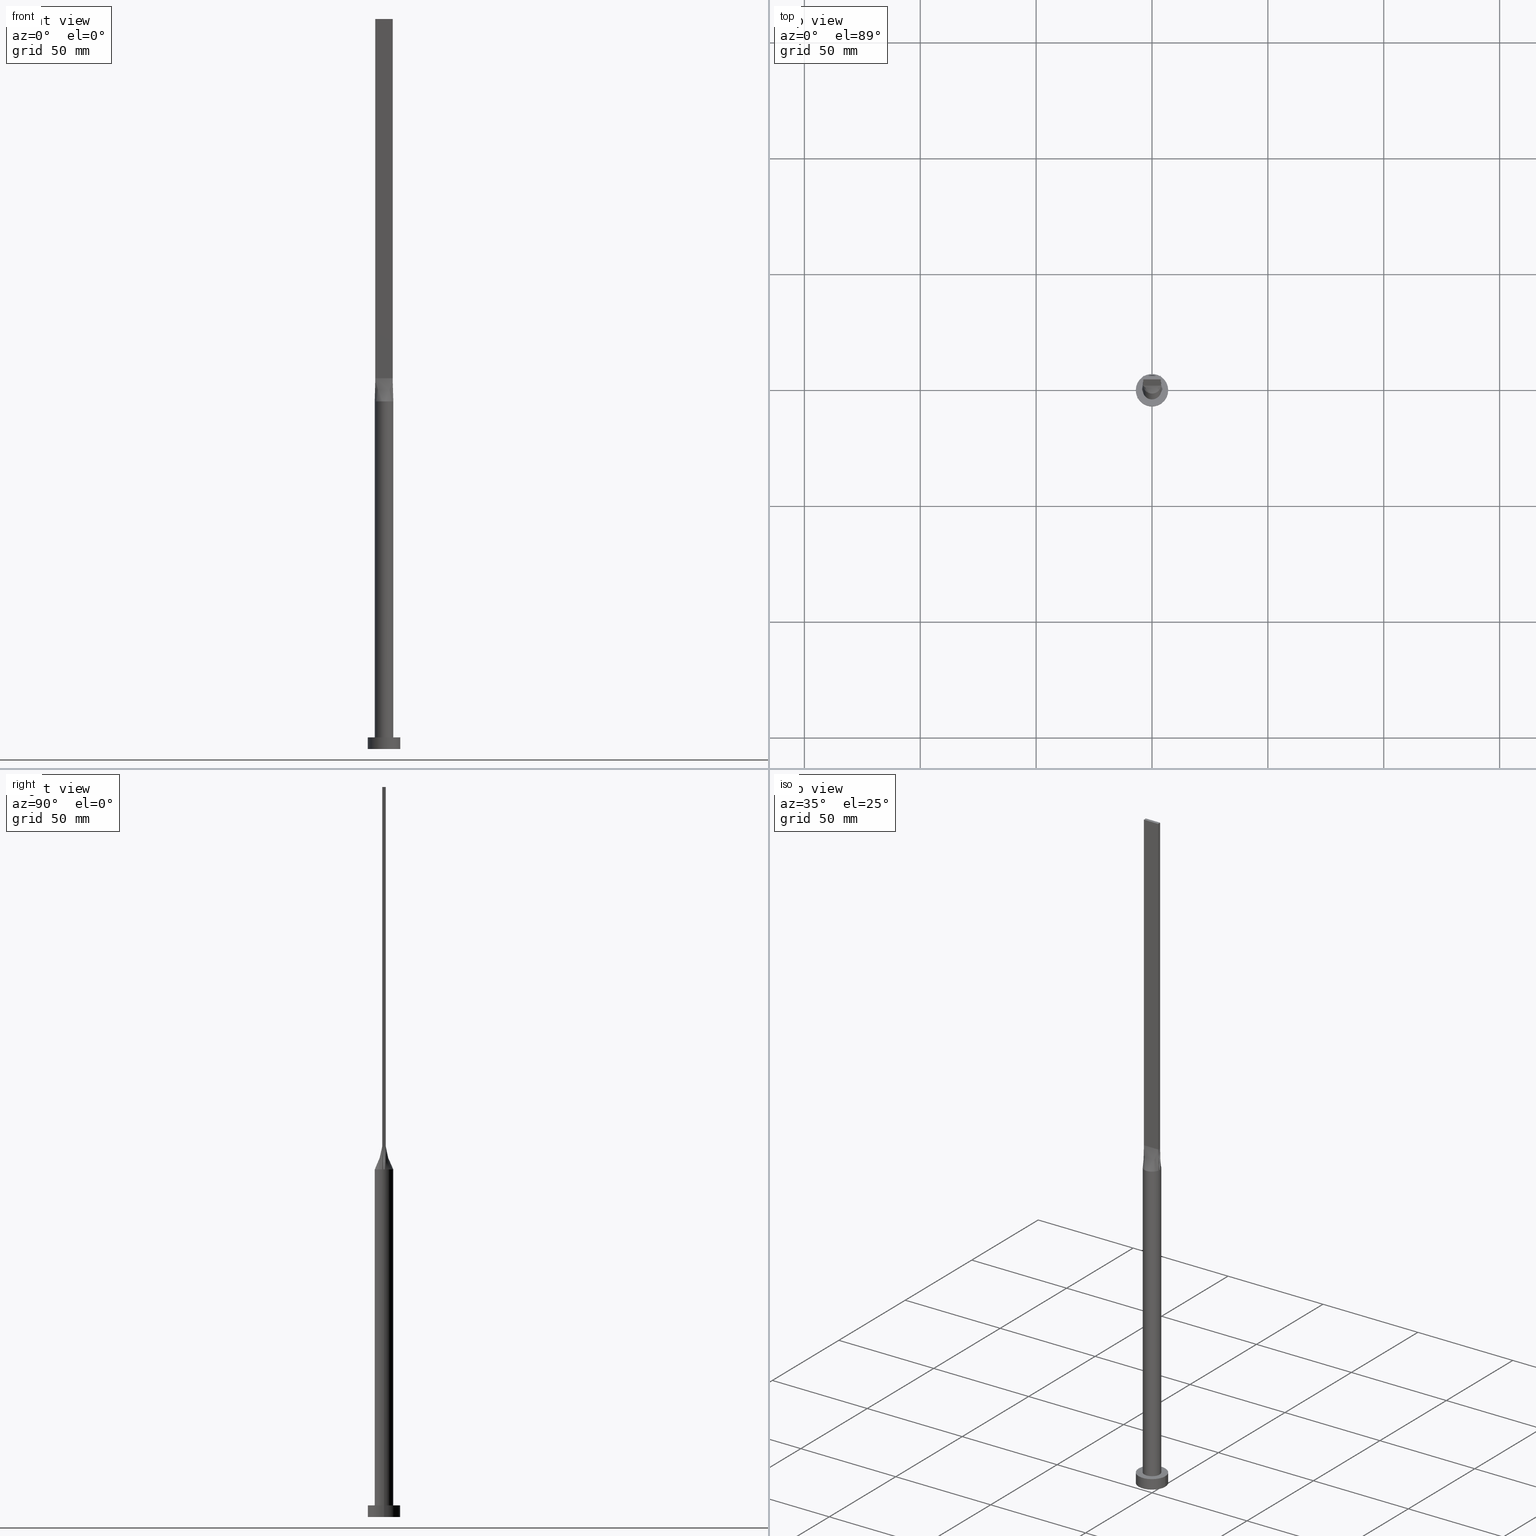
[diagram: canonical four-view strip — front | top / right | iso, engineering-drawing reading convention]
A machine part, canonical four-view strip (front | top / right | iso — engineering-drawing reading convention). The complete STEP part file that produces these views, byte-faithful:
ISO-10303-21;
HEADER;
FILE_DESCRIPTION (( 'STEP AP203' ),
    '1' );
FILE_NAME ('8cc7.STEP',
    '2023-02-13T10:44:38',
    ( '' ),
    ( '' ),
    'SwSTEP 2.0',
    'SolidWorks 2019',
    '' );
FILE_SCHEMA (( 'CONFIG_CONTROL_DESIGN' ));
ENDSEC;

DATA;
#1 = ORIENTED_EDGE ( 'NONE', *, *, #512, .T. ) ;
#2 = CARTESIAN_POINT ( 'NONE',  ( -3.748423346357937280, 1.451418640363469015, 150.0000000000000284 ) ) ;
#3 = CIRCLE ( 'NONE', #426, 7.000000000000000000 ) ;
#4 = B_SPLINE_SURFACE_WITH_KNOTS ( 'NONE', 3, 1, ( 
 ( #68, #67 ),
 ( #70, #251 ),
 ( #208, #27 ),
 ( #253, #560 ),
 ( #19, #344 ),
 ( #166, #431 ) ),
 .UNSPECIFIED., .F., .F., .F.,
 ( 4, 2, 4 ),
 ( 2, 2 ),
 ( 0.000000000000000000, 0.5000000000000000000, 1.000000000000000000 ),
 ( 0.000000000000000000, 1.000000000000000000 ),
 .UNSPECIFIED. ) ;
#5 = ORIENTED_EDGE ( 'NONE', *, *, #521, .F. ) ;
#6 = DIRECTION ( 'NONE',  ( 1.000000000000000000, -1.421085471520200372E-14, 0.000000000000000000 ) ) ;
#7 = EDGE_CURVE ( 'NONE', #326, #169, #202, .T. ) ;
#8 = ORIENTED_EDGE ( 'NONE', *, *, #451, .F. ) ;
#9 = CARTESIAN_POINT ( 'NONE',  ( -3.750000000000000000, 0.7500000000000002220, 160.0000000000000000 ) ) ;
#10 = AXIS2_PLACEMENT_3D ( 'NONE', #572, #318, #88 ) ;
#11 = LINE ( 'NONE', #553, #300 ) ;
#12 = CARTESIAN_POINT ( 'NONE',  ( 3.750000000000000000, -0.7499999999999997780, 315.0000000000000000 ) ) ;
#13 = CARTESIAN_POINT ( 'NONE',  ( 3.999622889843378992, 9.846808768795811108E-16, 150.0000000000000000 ) ) ;
#14 = EDGE_CURVE ( 'NONE', #454, #213, #564, .T. ) ;
#15 =( LENGTH_UNIT ( ) NAMED_UNIT ( * ) SI_UNIT ( .MILLI., .METRE. ) );
#16 = ORIENTED_EDGE ( 'NONE', *, *, #142, .T. ) ;
#17 =( NAMED_UNIT ( * ) SI_UNIT ( $, .STERADIAN. ) SOLID_ANGLE_UNIT ( ) );
#18 = APPROVAL ( #345, 'NEUR�EN�' ) ;
#19 = CARTESIAN_POINT ( 'NONE',  ( 3.973604754045732435, 0.5280542841424789025, 150.0000000000000000 ) ) ;
#20 = EDGE_LOOP ( 'NONE', ( #493, #243 ) ) ;
#21 = AXIS2_PLACEMENT_3D ( 'NONE', #94, #268, #356 ) ;
#22 = MECHANICAL_CONTEXT ( 'NONE', #132, 'mechanical' ) ;
#23 = CARTESIAN_POINT ( 'NONE',  ( -3.750000000000000000, -0.7499999999999993339, 315.0000000000000000 ) ) ;
#24 = APPROVAL_PERSON_ORGANIZATION ( #111, #278, #25 ) ;
#25 = APPROVAL_ROLE ( '' ) ;
#26 = VECTOR ( 'NONE', #499, 1000.000000000000000 ) ;
#27 = CARTESIAN_POINT ( 'NONE',  ( 3.749999999999999556, -0.2499999999999996669, 159.9999999999999716 ) ) ;
#28 = ADVANCED_FACE ( 'NONE', ( #76 ), #102, .T. ) ;
#29 = CALENDAR_DATE ( 2023, 13, 2 ) ;
#30 = MANIFOLD_SOLID_BREP ( 'P�idat vysunut�m5', #123 ) ;
#31 = LINE ( 'NONE', #69, #229 ) ;
#32 = VECTOR ( 'NONE', #280, 1000.000000000000000 ) ;
#33 = FACE_BOUND ( 'NONE', #436, .T. ) ;
#34 = CARTESIAN_POINT ( 'NONE',  ( -3.750000000000000000, 0.7500000000000002220, 315.0000000000000000 ) ) ;
#35 = ORIENTED_EDGE ( 'NONE', *, *, #555, .F. ) ;
#36 = EDGE_CURVE ( 'NONE', #219, #98, #453, .T. ) ;
#37 = CARTESIAN_POINT ( 'NONE',  ( 3.124999999999999112, -0.7499999999999997780, 159.9999999999999716 ) ) ;
#38 = ORIENTED_EDGE ( 'NONE', *, *, #177, .T. ) ;
#39 = CARTESIAN_POINT ( 'NONE',  ( 3.390424152328988416, -2.159240079384420419, 150.0000000000000000 ) ) ;
#40 = CARTESIAN_POINT ( 'NONE',  ( 2.187499999999999112, 0.7500000000000002220, 159.9999999999999716 ) ) ;
#41 = CARTESIAN_POINT ( 'NONE',  ( 3.390424152328985752, 2.159240079384420419, 150.0000000000000568 ) ) ;
#42 = VECTOR ( 'NONE', #424, 1000.000000000000000 ) ;
#43 = ADVANCED_FACE ( 'NONE', ( #359 ), #579, .F. ) ;
#44 = SHAPE_DEFINITION_REPRESENTATION ( #466, #334 ) ;
#45 = CARTESIAN_POINT ( 'NONE',  ( 3.140797583654741931, 2.520780954342106028, 150.0000000000000284 ) ) ;
#46 = CARTESIAN_POINT ( 'NONE',  ( -3.750000000000000000, 0.7500000000000002220, 315.0000000000000000 ) ) ;
#47 = DIRECTION ( 'NONE',  ( 1.000000000000000000, 0.000000000000000000, -0.000000000000000000 ) ) ;
#48 = PRODUCT_DEFINITION ( 'NEZN�M�', '', #567, #270 ) ;
#49 = DIRECTION ( 'NONE',  ( 0.000000000000000000, 0.000000000000000000, 1.000000000000000000 ) ) ;
#50 = LINE ( 'NONE', #240, #575 ) ;
#51 = EDGE_LOOP ( 'NONE', ( #129, #279, #459, #238 ) ) ;
#52 = DIRECTION ( 'NONE',  ( 0.000000000000000000, 0.000000000000000000, 1.000000000000000000 ) ) ;
#53 = DIRECTION ( 'NONE',  ( 1.000000000000000000, 0.000000000000000000, 0.000000000000000000 ) ) ;
#54 = ADVANCED_FACE ( 'NONE', ( #149 ), #234, .F. ) ;
#55 = CARTESIAN_POINT ( 'NONE',  ( -3.749999999999999556, -0.2499999999999998890, 159.9999999999999716 ) ) ;
#56 = VERTEX_POINT ( 'NONE', #488 ) ;
#57 = CARTESIAN_POINT ( 'NONE',  ( 3.750000000000000000, 0.7500000000000002220, 315.0000000000000000 ) ) ;
#58 = CARTESIAN_POINT ( 'NONE',  ( -3.749999999999999556, -0.4999999999999996669, 159.9999999999999716 ) ) ;
#59 = ORIENTED_EDGE ( 'NONE', *, *, #391, .T. ) ;
#60 = CARTESIAN_POINT ( 'NONE',  ( -3.750000000000000000, -0.7499999999999993339, 315.0000000000000000 ) ) ;
#61 = DIRECTION ( 'NONE',  ( 1.000000000000000000, 0.000000000000000000, 0.000000000000000000 ) ) ;
#62 = AXIS2_PLACEMENT_3D ( 'NONE', #198, #90, #316 ) ;
#63 = CARTESIAN_POINT ( 'NONE',  ( 0.000000000000000000, 0.000000000000000000, 0.000000000000000000 ) ) ;
#64 = SECURITY_CLASSIFICATION ( '', '', #340 ) ;
#65 = APPROVAL ( #529, 'NEUR�EN�' ) ;
#66 = APPLICATION_PROTOCOL_DEFINITION ( 'international standard', 'config_control_design', 1994, #132 ) ;
#67 = CARTESIAN_POINT ( 'NONE',  ( 3.750000000000000000, -0.7499999999999997780, 160.0000000000000000 ) ) ;
#68 = CARTESIAN_POINT ( 'NONE',  ( 3.922322702763681335, -0.7844645405527358450, 150.0000000000000000 ) ) ;
#69 = CARTESIAN_POINT ( 'NONE',  ( 4.000000000000000000, 4.898587196589412829E-16, 150.0000000000000000 ) ) ;
#70 = CARTESIAN_POINT ( 'NONE',  ( 3.973604754045732435, -0.5280542841424799017, 150.0000000000000000 ) ) ;
#71 = CARTESIAN_POINT ( 'NONE',  ( -1.562500000000001332, 0.7500000000000002220, 159.9999999999999716 ) ) ;
#72 = CARTESIAN_POINT ( 'NONE',  ( -4.000000000000000000, 0.000000000000000000, 150.0000000000000000 ) ) ;
#73 = ADVANCED_FACE ( 'NONE', ( #83 ), #446, .T. ) ;
#74 = CARTESIAN_POINT ( 'NONE',  ( -3.750000000000000000, -0.7499999999999993339, 160.0000000000000000 ) ) ;
#75 = VERTEX_POINT ( 'NONE', #376 ) ;
#76 = FACE_OUTER_BOUND ( 'NONE', #196, .T. ) ;
#77 = CARTESIAN_POINT ( 'NONE',  ( 3.836161351381840667, 0.7672322702763675339, 155.0000000000000000 ) ) ;
#78 = UNCERTAINTY_MEASURE_WITH_UNIT (LENGTH_MEASURE( 1.000000000000000082E-05 ), #15, 'distance_accuracy_value', 'NONE');
#79 = EDGE_LOOP ( 'NONE', ( #409, #192, #35, #490 ) ) ;
#80 = FACE_OUTER_BOUND ( 'NONE', #550, .T. ) ;
#81 = CARTESIAN_POINT ( 'NONE',  ( 3.437499999999999556, -0.7499999999999997780, 159.9999999999999716 ) ) ;
#82 = CARTESIAN_POINT ( 'NONE',  ( -2.474203369347175219, 3.177619198138199152, 150.0000000000000000 ) ) ;
#83 = FACE_OUTER_BOUND ( 'NONE', #543, .T. ) ;
#84 = CARTESIAN_POINT ( 'NONE',  ( -3.125000000000000444, 0.7500000000000002220, 159.9999999999999716 ) ) ;
#85 = CARTESIAN_POINT ( 'NONE',  ( -1.562500000000000000, -0.7499999999999993339, 159.9999999999999716 ) ) ;
#86 = VECTOR ( 'NONE', #226, 1000.000000000000000 ) ;
#87 = AXIS2_PLACEMENT_3D ( 'NONE', #63, #171, #423 ) ;
#88 = DIRECTION ( 'NONE',  ( -1.000000000000000000, 5.782411586589357392E-17, 0.000000000000000000 ) ) ;
#89 = CIRCLE ( 'NONE', #393, 4.000000000000000000 ) ;
#90 = DIRECTION ( 'NONE',  ( 0.000000000000000000, -1.000000000000000000, 0.000000000000000000 ) ) ;
#91 = VERTEX_POINT ( 'NONE', #247 ) ;
#92 = CARTESIAN_POINT ( 'NONE',  ( 7.000000000000000000, 8.572527594031473190E-16, 5.000000000000000000 ) ) ;
#93 = CARTESIAN_POINT ( 'NONE',  ( -3.750000000000000000, -0.7499999999999993339, 160.0000000000000000 ) ) ;
#94 = CARTESIAN_POINT ( 'NONE',  ( 0.000000000000000000, 0.000000000000000000, 150.0000000000000000 ) ) ;
#95 = ORIENTED_EDGE ( 'NONE', *, *, #14, .F. ) ;
#96 = CARTESIAN_POINT ( 'NONE',  ( 0.000000000000000000, 0.000000000000000000, 0.000000000000000000 ) ) ;
#97 = VECTOR ( 'NONE', #434, 1000.000000000000000 ) ;
#98 = VERTEX_POINT ( 'NONE', #416 ) ;
#99 = CARTESIAN_POINT ( 'NONE',  ( 0.5465359351457045323, 4.000000000000000888, 150.0000000000000853 ) ) ;
#100 = CARTESIAN_POINT ( 'NONE',  ( -3.750000000000000000, 0.7500000000000002220, 160.0000000000000000 ) ) ;
#101 = APPROVAL_PERSON_ORGANIZATION ( #420, #65, #222 ) ;
#102 = B_SPLINE_SURFACE_WITH_KNOTS ( 'NONE', 3, 1, ( 
 ( #573, #138 ),
 ( #272, #145 ),
 ( #357, #314 ),
 ( #440, #444 ),
 ( #45, #40 ),
 ( #228, #232 ),
 ( #320, #210 ),
 ( #515, #559 ),
 ( #524, #473 ),
 ( #425, #312 ),
 ( #484, #140 ),
 ( #354, #487 ),
 ( #82, #71 ),
 ( #388, #317 ),
 ( #191, #571 ),
 ( #186, #84 ),
 ( #342, #292 ),
 ( #296, #495 ) ),
 .UNSPECIFIED., .F., .F., .F.,
 ( 4, 2, 2, 2, 2, 2, 2, 2, 4 ),
 ( 2, 2 ),
 ( 0.000000000000000000, 0.1249999999999999167, 0.2499999999999998890, 0.3749999999999998335, 0.4999999999999998890, 0.6249999999999998890, 0.7499999999999998890, 0.8750000000000000000, 1.000000000000000000 ),
 ( 0.000000000000000000, 1.000000000000000000 ),
 .UNSPECIFIED. ) ;
#103 = ORIENTED_EDGE ( 'NONE', *, *, #532, .F. ) ;
#104 = DIRECTION ( 'NONE',  ( 0.000000000000000000, 0.000000000000000000, 1.000000000000000000 ) ) ;
#105 = ORIENTED_EDGE ( 'NONE', *, *, #209, .F. ) ;
#106 = CARTESIAN_POINT ( 'NONE',  ( 0.000000000000000000, 0.000000000000000000, 5.000000000000000000 ) ) ;
#107 = ORIENTED_EDGE ( 'NONE', *, *, #496, .F. ) ;
#108 = CARTESIAN_POINT ( 'NONE',  ( -7.000000000000000000, 0.000000000000000000, 5.000000000000000000 ) ) ;
#109 = CC_DESIGN_DATE_AND_TIME_ASSIGNMENT ( #384, #563, ( #64 ) ) ;
#110 = AXIS2_PLACEMENT_3D ( 'NONE', #150, #328, #494 ) ;
#111 = PERSON_AND_ORGANIZATION ( #231, #568 ) ;
#112 = FACE_OUTER_BOUND ( 'NONE', #267, .T. ) ;
#113 = DIRECTION ( 'NONE',  ( -1.000000000000000000, 0.000000000000000000, 0.000000000000000000 ) ) ;
#114 = VERTEX_POINT ( 'NONE', #60 ) ;
#115 = CARTESIAN_POINT ( 'NONE',  ( -3.750000000000000000, -0.7499999999999993339, 160.0000000000000000 ) ) ;
#116 = ORIENTED_EDGE ( 'NONE', *, *, #194, .T. ) ;
#117 = CARTESIAN_POINT ( 'NONE',  ( 7.000000000000000000, 8.572527594031473190E-16, 5.000000000000000000 ) ) ;
#118 = COORDINATED_UNIVERSAL_TIME_OFFSET ( 1, 0, .AHEAD. ) ;
#119 = PLANE ( 'NONE',  #538 ) ;
#120 = AXIS2_PLACEMENT_3D ( 'NONE', #347, #122, #479 ) ;
#121 = PERSON_AND_ORGANIZATION_ROLE ( 'classification_officer' ) ;
#122 = DIRECTION ( 'NONE',  ( 0.000000000000000000, 0.000000000000000000, 1.000000000000000000 ) ) ;
#123 = CLOSED_SHELL ( 'NONE', ( #402, #151, #227, #216, #43, #188, #350, #245, #73, #28, #54, #170, #374, #547, #319 ) ) ;
#124 = VECTOR ( 'NONE', #301, 1000.000000000000000 ) ;
#125 = PERSON_AND_ORGANIZATION ( #231, #568 ) ;
#126 = CARTESIAN_POINT ( 'NONE',  ( 0.000000000000000000, 0.000000000000000000, 5.000000000000000000 ) ) ;
#127 = APPROVAL_DATE_TIME ( #437, #65 ) ;
#128 = CARTESIAN_POINT ( 'NONE',  ( 2.499999999999999556, -0.7499999999999996669, 159.9999999999999716 ) ) ;
#129 = ORIENTED_EDGE ( 'NONE', *, *, #303, .T. ) ;
#130 = EDGE_LOOP ( 'NONE', ( #160, #38, #394, #159, #518 ) ) ;
#131 = VERTEX_POINT ( 'NONE', #13 ) ;
#132 = APPLICATION_CONTEXT ( 'configuration controlled 3d designs of mechanical parts and assemblies' ) ;
#133 = CARTESIAN_POINT ( 'NONE',  ( 3.748423346357937280, -1.451418640363469015, 150.0000000000000284 ) ) ;
#134 = ORIENTED_EDGE ( 'NONE', *, *, #442, .T. ) ;
#135 = ORIENTED_EDGE ( 'NONE', *, *, #507, .F. ) ;
#136 = CARTESIAN_POINT ( 'NONE',  ( 7.000000000000000000, 8.572527594031473190E-16, 0.000000000000000000 ) ) ;
#137 = LOCAL_TIME ( 11, 44, 38.00000000000000000, #118 ) ;
#138 = CARTESIAN_POINT ( 'NONE',  ( 3.750000000000000000, 0.7500000000000002220, 160.0000000000000000 ) ) ;
#139 = CARTESIAN_POINT ( 'NONE',  ( 3.922678046951852959, 0.7845356715334603770, 150.0000000000000000 ) ) ;
#140 = CARTESIAN_POINT ( 'NONE',  ( -0.6250000000000019984, 0.7500000000000002220, 159.9999999999999716 ) ) ;
#141 = ORIENTED_EDGE ( 'NONE', *, *, #413, .T. ) ;
#142 = EDGE_CURVE ( 'NONE', #327, #114, #11, .T. ) ;
#143 = CARTESIAN_POINT ( 'NONE',  ( 2.055729527861830608, 3.471178582471582619, 149.9999999999999432 ) ) ;
#144 = CARTESIAN_POINT ( 'NONE',  ( 0.000000000000000000, 0.000000000000000000, 0.000000000000000000 ) ) ;
#145 = CARTESIAN_POINT ( 'NONE',  ( 3.437499999999999556, 0.7500000000000003331, 160.0000000000000000 ) ) ;
#146 = CARTESIAN_POINT ( 'NONE',  ( 2.187499999999999556, -0.7499999999999995559, 159.9999999999999716 ) ) ;
#147 = VECTOR ( 'NONE', #380, 1000.000000000000000 ) ;
#148 = CARTESIAN_POINT ( 'NONE',  ( -3.922322702763681335, -0.7844645405527344018, 150.0000000000000000 ) ) ;
#149 = FACE_OUTER_BOUND ( 'NONE', #460, .T. ) ;
#150 = CARTESIAN_POINT ( 'NONE',  ( 0.000000000000000000, 0.000000000000000000, 150.0000000000000000 ) ) ;
#151 = ADVANCED_FACE ( 'NONE', ( #161 ), #372, .T. ) ;
#152 = ORIENTED_EDGE ( 'NONE', *, *, #381, .F. ) ;
#153 = CARTESIAN_POINT ( 'NONE',  ( -3.140797583654740599, 2.520780954342106916, 150.0000000000000000 ) ) ;
#154 = ORIENTED_EDGE ( 'NONE', *, *, #532, .T. ) ;
#155 = DIRECTION ( 'NONE',  ( 0.000000000000000000, 0.000000000000000000, 1.000000000000000000 ) ) ;
#156 = CIRCLE ( 'NONE', #475, 7.000000000000000000 ) ;
#157 = ORIENTED_EDGE ( 'NONE', *, *, #433, .T. ) ;
#158 = DIRECTION ( 'NONE',  ( 0.000000000000000000, 0.000000000000000000, 1.000000000000000000 ) ) ;
#159 = ORIENTED_EDGE ( 'NONE', *, *, #303, .F. ) ;
#160 = ORIENTED_EDGE ( 'NONE', *, *, #507, .T. ) ;
#161 = FACE_OUTER_BOUND ( 'NONE', #501, .T. ) ;
#162 = CARTESIAN_POINT ( 'NONE',  ( 0.000000000000000000, 0.000000000000000000, 5.000000000000000000 ) ) ;
#163 = CC_DESIGN_PERSON_AND_ORGANIZATION_ASSIGNMENT ( #174, #474, ( #48 ) ) ;
#164 = ORIENTED_EDGE ( 'NONE', *, *, #194, .F. ) ;
#165 = PERSON_AND_ORGANIZATION ( #231, #568 ) ;
#166 = CARTESIAN_POINT ( 'NONE',  ( 3.922322702763681335, 0.7844645405527348458, 150.0000000000000000 ) ) ;
#167 = DATE_AND_TIME ( #298, #137 ) ;
#168 = FACE_OUTER_BOUND ( 'NONE', #203, .T. ) ;
#169 = VERTEX_POINT ( 'NONE', #136 ) ;
#170 = ADVANCED_FACE ( 'NONE', ( #80 ), #422, .F. ) ;
#171 = DIRECTION ( 'NONE',  ( 0.000000000000000000, 0.000000000000000000, 1.000000000000000000 ) ) ;
#172 = CARTESIAN_POINT ( 'NONE',  ( 3.750000000000000000, 0.7500000000000002220, 160.0000000000000000 ) ) ;
#173 = ORIENTED_EDGE ( 'NONE', *, *, #485, .T. ) ;
#174 = PERSON_AND_ORGANIZATION ( #231, #568 ) ;
#175 = DIRECTION ( 'NONE',  ( 0.000000000000000000, 0.000000000000000000, 1.000000000000000000 ) ) ;
#176 = AXIS2_PLACEMENT_3D ( 'NONE', #195, #49, #497 ) ;
#177 = EDGE_CURVE ( 'NONE', #131, #91, #254, .T. ) ;
#178 = DIRECTION ( 'NONE',  ( 0.000000000000000000, 0.000000000000000000, 1.000000000000000000 ) ) ;
#179 = ORIENTED_EDGE ( 'NONE', *, *, #275, .F. ) ;
#180 = AXIS2_PLACEMENT_3D ( 'NONE', #411, #52, #6 ) ;
#181 = CARTESIAN_POINT ( 'NONE',  ( -0.3125000000000004441, -0.7499999999999993339, 160.0000000000000000 ) ) ;
#182 = ORIENTED_EDGE ( 'NONE', *, *, #249, .F. ) ;
#183 = CC_DESIGN_DATE_AND_TIME_ASSIGNMENT ( #419, #478, ( #48 ) ) ;
#184 = PLANE ( 'NONE',  #443 ) ;
#185 = ORIENTED_EDGE ( 'NONE', *, *, #433, .F. ) ;
#186 = CARTESIAN_POINT ( 'NONE',  ( -3.748423346357937280, 1.451418640363469015, 150.0000000000000284 ) ) ;
#187 = CARTESIAN_POINT ( 'NONE',  ( -7.000000000000000000, 0.000000000000000000, 0.000000000000000000 ) ) ;
#188 = ADVANCED_FACE ( 'NONE', ( #112 ), #480, .T. ) ;
#189 = DIRECTION ( 'NONE',  ( -0.01722960997854778437, -0.003445921995709435269, -0.9998456211643809155 ) ) ;
#190 = CARTESIAN_POINT ( 'NONE',  ( 1.091295599582912557, -3.883835547170275682, 150.0000000000000000 ) ) ;
#191 = CARTESIAN_POINT ( 'NONE',  ( -3.390424152328988416, 2.159240079384419975, 150.0000000000000284 ) ) ;
#192 = ORIENTED_EDGE ( 'NONE', *, *, #36, .T. ) ;
#193 = CARTESIAN_POINT ( 'NONE',  ( -3.750000000000000000, -0.7499999999999993339, 160.0000000000000000 ) ) ;
#194 = EDGE_CURVE ( 'NONE', #390, #327, #348, .T. ) ;
#195 = CARTESIAN_POINT ( 'NONE',  ( 0.000000000000000000, 0.000000000000000000, 0.000000000000000000 ) ) ;
#196 = EDGE_LOOP ( 'NONE', ( #338, #335, #308, #519 ) ) ;
#197 = DIRECTION ( 'NONE',  ( -0.000000000000000000, -0.000000000000000000, -1.000000000000000000 ) ) ;
#198 = CARTESIAN_POINT ( 'NONE',  ( 3.750000000000000000, 0.7500000000000002220, 315.0000000000000000 ) ) ;
#199 = DIRECTION ( 'NONE',  ( -0.000000000000000000, -0.000000000000000000, -1.000000000000000000 ) ) ;
#200 = FACE_OUTER_BOUND ( 'NONE', #51, .T. ) ;
#201 = CARTESIAN_POINT ( 'NONE',  ( -3.749999999999999556, 0.2499999999999998890, 159.9999999999999716 ) ) ;
#202 = CIRCLE ( 'NONE', #176, 7.000000000000000000 ) ;
#203 = EDGE_LOOP ( 'NONE', ( #185, #182, #1, #504 ) ) ;
#204 = DIRECTION ( 'NONE',  ( 0.000000000000000000, -1.000000000000000000, 0.000000000000000000 ) ) ;
#205 = APPLICATION_CONTEXT ( 'configuration controlled 3d designs of mechanical parts and assemblies' ) ;
#206 = LINE ( 'NONE', #92, #26 ) ;
#207 = APPROVAL_DATE_TIME ( #214, #278 ) ;
#208 = CARTESIAN_POINT ( 'NONE',  ( 3.999245779686757984, -0.2640271420712401729, 150.0000000000000000 ) ) ;
#209 = EDGE_CURVE ( 'NONE', #213, #56, #378, .T. ) ;
#210 = CARTESIAN_POINT ( 'NONE',  ( 1.249999999999998668, 0.7500000000000002220, 159.9999999999999716 ) ) ;
#211 = DIRECTION ( 'NONE',  ( 0.000000000000000000, 0.000000000000000000, 1.000000000000000000 ) ) ;
#212 = LOCAL_TIME ( 11, 44, 38.00000000000000000, #290 ) ;
#213 = VERTEX_POINT ( 'NONE', #526 ) ;
#214 = DATE_AND_TIME ( #29, #577 ) ;
#215 = DIRECTION ( 'NONE',  ( -0.000000000000000000, 1.000000000000000000, -0.000000000000000000 ) ) ;
#216 = ADVANCED_FACE ( 'NONE', ( #33, #562 ), #119, .T. ) ;
#217 = PERSON_AND_ORGANIZATION_ROLE ( 'creator' ) ;
#218 = LINE ( 'NONE', #23, #42 ) ;
#219 = VERTEX_POINT ( 'NONE', #565 ) ;
#220 = AXIS2_PLACEMENT_3D ( 'NONE', #534, #178, #256 ) ;
#221 = CC_DESIGN_PERSON_AND_ORGANIZATION_ASSIGNMENT ( #165, #382, ( #567 ) ) ;
#222 = APPROVAL_ROLE ( '' ) ;
#223 = DIRECTION ( 'NONE',  ( -0.000000000000000000, -0.000000000000000000, -1.000000000000000000 ) ) ;
#224 = FACE_OUTER_BOUND ( 'NONE', #79, .T. ) ;
#225 = CARTESIAN_POINT ( 'NONE',  ( -3.858220138661117460, -1.104977361065555774, 150.0000000000000000 ) ) ;
#226 = DIRECTION ( 'NONE',  ( -0.01722960997854778437, -0.003445921995709391901, 0.9998456211643809155 ) ) ;
#227 = ADVANCED_FACE ( 'NONE', ( #168 ), #261, .T. ) ;
#228 = CARTESIAN_POINT ( 'NONE',  ( 2.474203369347174331, 3.177619198138197820, 150.0000000000000000 ) ) ;
#229 = VECTOR ( 'NONE', #523, 1000.000000000000000 ) ;
#230 = CARTESIAN_POINT ( 'NONE',  ( -2.500000000000000000, -0.7499999999999993339, 159.9999999999999716 ) ) ;
#231 = PERSON ( 'NEUR�EN�', 'NEUR�EN�', 'NEUR�EN�', ('NEUR�EN�'), ('NEUR�EN�'), ('NEUR�EN�') ) ;
#232 = CARTESIAN_POINT ( 'NONE',  ( 1.562499999999998890, 0.7500000000000002220, 159.9999999999999716 ) ) ;
#233 = CARTESIAN_POINT ( 'NONE',  ( 3.858220138661116128, 1.104977361065556440, 150.0000000000000000 ) ) ;
#234 = PLANE ( 'NONE',  #62 ) ;
#235 = DIRECTION ( 'NONE',  ( -0.000000000000000000, 0.000000000000000000, -1.000000000000000000 ) ) ;
#236 = EDGE_CURVE ( 'NONE', #454, #541, #291, .T. ) ;
#237 = DIRECTION ( 'NONE',  ( 1.000000000000000000, 0.000000000000000000, 0.000000000000000000 ) ) ;
#238 = ORIENTED_EDGE ( 'NONE', *, *, #496, .T. ) ;
#239 = VERTEX_POINT ( 'NONE', #470 ) ;
#240 = CARTESIAN_POINT ( 'NONE',  ( -3.750000000000000000, 0.7500000000000002220, 160.0000000000000000 ) ) ;
#241 = LINE ( 'NONE', #246, #257 ) ;
#242 = EDGE_LOOP ( 'NONE', ( #449, #8 ) ) ;
#243 = ORIENTED_EDGE ( 'NONE', *, *, #521, .T. ) ;
#244 = DIRECTION ( 'NONE',  ( 0.000000000000000000, 1.000000000000000000, 0.000000000000000000 ) ) ;
#245 = ADVANCED_FACE ( 'NONE', ( #517 ), #4, .T. ) ;
#246 = CARTESIAN_POINT ( 'NONE',  ( 3.750000000000000000, -0.7499999999999997780, 315.0000000000000000 ) ) ;
#247 = CARTESIAN_POINT ( 'NONE',  ( 3.922678046951852959, 0.7845356715334603770, 150.0000000000000000 ) ) ;
#248 =( GEOMETRIC_REPRESENTATION_CONTEXT ( 3 ) GLOBAL_UNCERTAINTY_ASSIGNED_CONTEXT ( ( #78 ) ) GLOBAL_UNIT_ASSIGNED_CONTEXT ( ( #15, #259, #17 ) ) REPRESENTATION_CONTEXT ( 'NONE', 'WORKASPACE' ) );
#249 = EDGE_CURVE ( 'NONE', #400, #264, #156, .T. ) ;
#250 = APPLICATION_PROTOCOL_DEFINITION ( 'international standard', 'config_control_design', 1994, #205 ) ;
#251 = CARTESIAN_POINT ( 'NONE',  ( 3.749999999999999556, -0.4999999999999996669, 159.9999999999999716 ) ) ;
#252 = LINE ( 'NONE', #115, #124 ) ;
#253 = CARTESIAN_POINT ( 'NONE',  ( 3.999245779686757984, 0.2640271420712392292, 150.0000000000000000 ) ) ;
#254 = CIRCLE ( 'NONE', #220, 4.000000000000000000 ) ;
#255 = CALENDAR_DATE ( 2023, 13, 2 ) ;
#256 = DIRECTION ( 'NONE',  ( 1.000000000000000000, 0.000000000000000000, 0.000000000000000000 ) ) ;
#257 = VECTOR ( 'NONE', #197, 1000.000000000000000 ) ;
#258 = CC_DESIGN_SECURITY_CLASSIFICATION ( #64, ( #567 ) ) ;
#259 =( NAMED_UNIT ( * ) PLANE_ANGLE_UNIT ( ) SI_UNIT ( $, .RADIAN. ) );
#260 = DIRECTION ( 'NONE',  ( -0.000000000000000000, -0.000000000000000000, -1.000000000000000000 ) ) ;
#261 = CYLINDRICAL_SURFACE ( 'NONE', #399, 7.000000000000000000 ) ;
#262 = CALENDAR_DATE ( 2023, 13, 2 ) ;
#263 = CARTESIAN_POINT ( 'NONE',  ( -1.091295599582913445, -3.883835547170274349, 150.0000000000000000 ) ) ;
#264 = VERTEX_POINT ( 'NONE', #117 ) ;
#265 = EDGE_CURVE ( 'NONE', #131, #239, #31, .T. ) ;
#266 = PLANE ( 'NONE',  #10 ) ;
#267 = EDGE_LOOP ( 'NONE', ( #450, #135, #360, #332, #574, #472 ) ) ;
#268 = DIRECTION ( 'NONE',  ( 0.000000000000000000, 0.000000000000000000, 1.000000000000000000 ) ) ;
#269 = CARTESIAN_POINT ( 'NONE',  ( 0.6250000000000000000, -0.7499999999999994449, 159.9999999999999716 ) ) ;
#270 = DESIGN_CONTEXT ( 'detailed design', #205, 'design' ) ;
#271 = CARTESIAN_POINT ( 'NONE',  ( 3.836161351381840667, -0.7672322702763668678, 155.0000000000000000 ) ) ;
#272 = CARTESIAN_POINT ( 'NONE',  ( 3.858220138661116128, 1.104977361065556440, 150.0000000000000000 ) ) ;
#273 = VECTOR ( 'NONE', #244, 1000.000000000000000 ) ;
#274 = CARTESIAN_POINT ( 'NONE',  ( -2.474203369347176107, -3.177619198138197820, 150.0000000000000000 ) ) ;
#275 = EDGE_CURVE ( 'NONE', #114, #398, #218, .T. ) ;
#276 = DIRECTION ( 'NONE',  ( -0.01722960997854778437, 0.003445921995709359375, 0.9998456211643809155 ) ) ;
#277 = CARTESIAN_POINT ( 'NONE',  ( -2.187499999999999556, -0.7499999999999993339, 159.9999999999999716 ) ) ;
#278 = APPROVAL ( #427, 'NEUR�EN�' ) ;
#279 = ORIENTED_EDGE ( 'NONE', *, *, #537, .F. ) ;
#280 = DIRECTION ( 'NONE',  ( 1.000000000000000000, -5.782411586589357392E-17, 0.000000000000000000 ) ) ;
#281 = CYLINDRICAL_SURFACE ( 'NONE', #110, 4.000000000000000000 ) ;
#282 = AXIS2_PLACEMENT_3D ( 'NONE', #299, #260, #554 ) ;
#283 = EDGE_LOOP ( 'NONE', ( #116, #16, #141, #59 ) ) ;
#284 = DIRECTION ( 'NONE',  ( 0.000000000000000000, -1.000000000000000000, 0.000000000000000000 ) ) ;
#285 = EDGE_CURVE ( 'NONE', #327, #541, #302, .T. ) ;
#286 = ORIENTED_EDGE ( 'NONE', *, *, #14, .T. ) ;
#287 = VERTEX_POINT ( 'NONE', #172 ) ;
#288 = CARTESIAN_POINT ( 'NONE',  ( -2.474203369347175219, 3.177619198138199152, 150.0000000000000000 ) ) ;
#289 = CARTESIAN_POINT ( 'NONE',  ( -0.5465359351457050874, 4.000000000000000000, 150.0000000000000284 ) ) ;
#290 = COORDINATED_UNIVERSAL_TIME_OFFSET ( 1, 0, .AHEAD. ) ;
#291 = LINE ( 'NONE', #428, #97 ) ;
#292 = CARTESIAN_POINT ( 'NONE',  ( -3.437500000000000444, 0.7500000000000002220, 159.9999999999999716 ) ) ;
#293 = PRODUCT_RELATED_PRODUCT_CATEGORY ( 'detail', '', ( #329 ) ) ;
#294 = DIRECTION ( 'NONE',  ( -1.000000000000000000, 0.000000000000000000, 0.000000000000000000 ) ) ;
#295 = CARTESIAN_POINT ( 'NONE',  ( -3.750000000000000000, 0.7500000000000002220, 315.0000000000000000 ) ) ;
#296 = CARTESIAN_POINT ( 'NONE',  ( -3.922322702763681335, 0.7844645405527345128, 150.0000000000000000 ) ) ;
#297 = ORIENTED_EDGE ( 'NONE', *, *, #285, .F. ) ;
#298 = CALENDAR_DATE ( 2023, 13, 2 ) ;
#299 = CARTESIAN_POINT ( 'NONE',  ( 0.000000000000000000, 0.000000000000000000, 150.0000000000000000 ) ) ;
#300 = VECTOR ( 'NONE', #204, 1000.000000000000000 ) ;
#301 = DIRECTION ( 'NONE',  ( 1.000000000000000000, -5.782411586589357392E-17, 0.000000000000000000 ) ) ;
#302 = LINE ( 'NONE', #295, #147 ) ;
#303 = EDGE_CURVE ( 'NONE', #98, #287, #346, .T. ) ;
#304 = VECTOR ( 'NONE', #412, 1000.000000000000000 ) ;
#305 = CARTESIAN_POINT ( 'NONE',  ( 3.750000000000000000, 0.7500000000000002220, 315.0000000000000000 ) ) ;
#306 = CARTESIAN_POINT ( 'NONE',  ( -3.836161351381840667, -0.7672322702763668678, 155.0000000000000000 ) ) ;
#307 = ORIENTED_EDGE ( 'NONE', *, *, #492, .T. ) ;
#308 = ORIENTED_EDGE ( 'NONE', *, *, #492, .F. ) ;
#309 = EDGE_CURVE ( 'NONE', #508, #219, #371, .T. ) ;
#310 = CARTESIAN_POINT ( 'NONE',  ( -0.6250000000000003331, -0.7499999999999993339, 159.9999999999999716 ) ) ;
#311 = ORIENTED_EDGE ( 'NONE', *, *, #451, .T. ) ;
#312 = CARTESIAN_POINT ( 'NONE',  ( -0.3125000000000022204, 0.7500000000000003331, 159.9999999999999716 ) ) ;
#313 = APPROVAL_PERSON_ORGANIZATION ( #125, #18, #516 ) ;
#314 = CARTESIAN_POINT ( 'NONE',  ( 3.124999999999999556, 0.7500000000000003331, 160.0000000000000000 ) ) ;
#315 = CARTESIAN_POINT ( 'NONE',  ( -3.124999999999999556, -0.7499999999999993339, 159.9999999999999716 ) ) ;
#316 = DIRECTION ( 'NONE',  ( 0.000000000000000000, -0.000000000000000000, -1.000000000000000000 ) ) ;
#317 = CARTESIAN_POINT ( 'NONE',  ( -2.187500000000000888, 0.7500000000000002220, 159.9999999999999716 ) ) ;
#318 = DIRECTION ( 'NONE',  ( 5.782411586589357392E-17, 1.000000000000000000, -0.000000000000000000 ) ) ;
#319 = ADVANCED_FACE ( 'NONE', ( #385 ), #184, .T. ) ;
#320 = CARTESIAN_POINT ( 'NONE',  ( 2.055729527861830608, 3.471178582471582619, 149.9999999999999432 ) ) ;
#321 = CARTESIAN_POINT ( 'NONE',  ( 3.922322702763681335, -0.7844645405527340687, 150.0000000000000000 ) ) ;
#322 = CARTESIAN_POINT ( 'NONE',  ( -3.973604754045732435, 0.5280542841424794576, 150.0000000000000000 ) ) ;
#323 = CC_DESIGN_APPROVAL ( #278, ( #567 ) ) ;
#324 = ORIENTED_EDGE ( 'NONE', *, *, #485, .F. ) ;
#325 = CARTESIAN_POINT ( 'NONE',  ( -3.922691944042750123, 0.7845383302616953936, 150.0000000000000000 ) ) ;
#326 = VERTEX_POINT ( 'NONE', #187 ) ;
#327 = VERTEX_POINT ( 'NONE', #46 ) ;
#328 = DIRECTION ( 'NONE',  ( -0.000000000000000000, -0.000000000000000000, -1.000000000000000000 ) ) ;
#329 = PRODUCT ( '8cc7', '8cc7', '', ( #22 ) ) ;
#330 = EDGE_CURVE ( 'NONE', #56, #239, #363, .T. ) ;
#331 = LINE ( 'NONE', #502, #477 ) ;
#332 = ORIENTED_EDGE ( 'NONE', *, *, #442, .F. ) ;
#333 = CARTESIAN_POINT ( 'NONE',  ( -3.858220138661117460, 1.104977361065555996, 150.0000000000000000 ) ) ;
#334 = ADVANCED_BREP_SHAPE_REPRESENTATION ( '8cc7', ( #30, #87 ), #248 ) ;
#335 = ORIENTED_EDGE ( 'NONE', *, *, #236, .T. ) ;
#336 = CARTESIAN_POINT ( 'NONE',  ( 3.750000000000000000, -0.7499999999999997780, 315.0000000000000000 ) ) ;
#337 = EDGE_CURVE ( 'NONE', #398, #508, #535, .T. ) ;
#338 = ORIENTED_EDGE ( 'NONE', *, *, #381, .T. ) ;
#339 = B_SPLINE_SURFACE_WITH_KNOTS ( 'NONE', 3, 1, ( 
 ( #578, #74 ),
 ( #225, #353 ),
 ( #392, #315 ),
 ( #397, #230 ),
 ( #395, #277 ),
 ( #274, #85 ),
 ( #358, #362 ),
 ( #263, #310 ),
 ( #536, #181 ),
 ( #351, #404 ),
 ( #190, #269 ),
 ( #438, #439 ),
 ( #483, #349 ),
 ( #445, #146 ),
 ( #39, #128 ),
 ( #133, #37 ),
 ( #528, #81 ),
 ( #321, #570 ) ),
 .UNSPECIFIED., .F., .F., .F.,
 ( 4, 2, 2, 2, 2, 2, 2, 2, 4 ),
 ( 2, 2 ),
 ( 0.000000000000000000, 0.1249999999999999722, 0.2500000000000000000, 0.3750000000000000000, 0.5000000000000001110, 0.6250000000000001110, 0.7500000000000000000, 0.8750000000000000000, 1.000000000000000000 ),
 ( 0.000000000000000000, 1.000000000000000000 ),
 .UNSPECIFIED. ) ;
#340 = SECURITY_CLASSIFICATION_LEVEL ( 'unclassified' ) ;
#341 = DIRECTION ( 'NONE',  ( 1.000000000000000000, 0.000000000000000000, -0.000000000000000000 ) ) ;
#342 = CARTESIAN_POINT ( 'NONE',  ( -3.858220138661117460, 1.104977361065555996, 150.0000000000000000 ) ) ;
#343 = APPROVAL_DATE_TIME ( #167, #18 ) ;
#344 = CARTESIAN_POINT ( 'NONE',  ( 3.749999999999999556, 0.5000000000000002220, 159.9999999999999716 ) ) ;
#345 = APPROVAL_STATUS ( 'not_yet_approved' ) ;
#346 = LINE ( 'NONE', #476, #468 ) ;
#347 = CARTESIAN_POINT ( 'NONE',  ( 0.000000000000000000, 0.000000000000000000, 150.0000000000000000 ) ) ;
#348 = LINE ( 'NONE', #305, #581 ) ;
#349 = CARTESIAN_POINT ( 'NONE',  ( 1.562499999999999556, -0.7499999999999995559, 159.9999999999999716 ) ) ;
#350 = ADVANCED_FACE ( 'NONE', ( #224 ), #339, .T. ) ;
#351 = CARTESIAN_POINT ( 'NONE',  ( 0.5465359351457046433, -4.000000000000000888, 150.0000000000000284 ) ) ;
#352 = VECTOR ( 'NONE', #471, 1000.000000000000000 ) ;
#353 = CARTESIAN_POINT ( 'NONE',  ( -3.437499999999999556, -0.7499999999999993339, 159.9999999999999716 ) ) ;
#354 = CARTESIAN_POINT ( 'NONE',  ( -2.055729527861832828, 3.471178582471583063, 150.0000000000000000 ) ) ;
#355 = LOCAL_TIME ( 11, 44, 38.00000000000000000, #510 ) ;
#356 = DIRECTION ( 'NONE',  ( 1.000000000000000000, 0.000000000000000000, 0.000000000000000000 ) ) ;
#357 = CARTESIAN_POINT ( 'NONE',  ( 3.748423346357935948, 1.451418640363468349, 150.0000000000000284 ) ) ;
#358 = CARTESIAN_POINT ( 'NONE',  ( -2.055729527861833272, -3.471178582471582175, 150.0000000000000000 ) ) ;
#359 = FACE_OUTER_BOUND ( 'NONE', #242, .T. ) ;
#360 = ORIENTED_EDGE ( 'NONE', *, *, #309, .F. ) ;
#361 = EDGE_CURVE ( 'NONE', #91, #287, #491, .T. ) ;
#362 = CARTESIAN_POINT ( 'NONE',  ( -1.250000000000000222, -0.7499999999999993339, 159.9999999999999716 ) ) ;
#363 = CIRCLE ( 'NONE', #435, 4.000000000000000000 ) ;
#364 = LINE ( 'NONE', #12, #273 ) ;
#365 = AXIS2_PLACEMENT_3D ( 'NONE', #96, #158, #237 ) ;
#366 = CARTESIAN_POINT ( 'NONE',  ( 3.750000000000000000, 0.7500000000000002220, 315.0000000000000000 ) ) ;
#367 = ORIENTED_EDGE ( 'NONE', *, *, #265, .T. ) ;
#368 = CARTESIAN_POINT ( 'NONE',  ( 0.000000000000000000, 0.000000000000000000, 5.000000000000000000 ) ) ;
#369 = CARTESIAN_POINT ( 'NONE',  ( -3.973604754045732435, -0.5280542841424784584, 150.0000000000000000 ) ) ;
#370 = CARTESIAN_POINT ( 'NONE',  ( 1.091295599582912113, 3.883835547170277014, 150.0000000000000568 ) ) ;
#371 = CIRCLE ( 'NONE', #120, 4.000000000000000000 ) ;
#372 = CYLINDRICAL_SURFACE ( 'NONE', #389, 7.000000000000000000 ) ;
#373 = AXIS2_PLACEMENT_3D ( 'NONE', #336, #294, #467 ) ;
#374 = ADVANCED_FACE ( 'NONE', ( #533 ), #266, .F. ) ;
#375 = CARTESIAN_POINT ( 'NONE',  ( -3.922691619086878134, -0.7845384300002018474, 150.0000000000000000 ) ) ;
#376 = CARTESIAN_POINT ( 'NONE',  ( 3.750000000000000000, -0.7499999999999997780, 315.0000000000000000 ) ) ;
#377 = PERSON_AND_ORGANIZATION ( #231, #568 ) ;
#378 = LINE ( 'NONE', #72, #352 ) ;
#379 = DIRECTION ( 'NONE',  ( 1.000000000000000000, 0.000000000000000000, 0.000000000000000000 ) ) ;
#380 = DIRECTION ( 'NONE',  ( -0.000000000000000000, -0.000000000000000000, -1.000000000000000000 ) ) ;
#381 = EDGE_CURVE ( 'NONE', #91, #454, #463, .T. ) ;
#382 = PERSON_AND_ORGANIZATION_ROLE ( 'design_supplier' ) ;
#383 = DIRECTION ( 'NONE',  ( -1.000000000000000000, 0.000000000000000000, 0.000000000000000000 ) ) ;
#384 = DATE_AND_TIME ( #469, #355 ) ;
#385 = FACE_OUTER_BOUND ( 'NONE', #283, .T. ) ;
#386 = ORIENTED_EDGE ( 'NONE', *, *, #330, .F. ) ;
#387 = ORIENTED_EDGE ( 'NONE', *, *, #413, .F. ) ;
#388 = CARTESIAN_POINT ( 'NONE',  ( -3.140797583654740599, 2.520780954342106916, 150.0000000000000000 ) ) ;
#389 = AXIS2_PLACEMENT_3D ( 'NONE', #106, #223, #113 ) ;
#390 = VERTEX_POINT ( 'NONE', #366 ) ;
#391 = EDGE_CURVE ( 'NONE', #75, #390, #364, .T. ) ;
#392 = CARTESIAN_POINT ( 'NONE',  ( -3.748423346357938168, -1.451418640363467683, 150.0000000000000284 ) ) ;
#393 = AXIS2_PLACEMENT_3D ( 'NONE', #457, #104, #53 ) ;
#394 = ORIENTED_EDGE ( 'NONE', *, *, #361, .T. ) ;
#395 = CARTESIAN_POINT ( 'NONE',  ( -3.140797583654741043, -2.520780954342105140, 149.9999999999999716 ) ) ;
#396 = CC_DESIGN_PERSON_AND_ORGANIZATION_ASSIGNMENT ( #377, #217, ( #567 ) ) ;
#397 = CARTESIAN_POINT ( 'NONE',  ( -3.390424152328987528, -2.159240079384418642, 149.9999999999999716 ) ) ;
#398 = VERTEX_POINT ( 'NONE', #193 ) ;
#399 = AXIS2_PLACEMENT_3D ( 'NONE', #514, #511, #383 ) ;
#400 = VERTEX_POINT ( 'NONE', #542 ) ;
#401 = CARTESIAN_POINT ( 'NONE',  ( 3.140797583654741931, 2.520780954342106028, 150.0000000000000284 ) ) ;
#402 = ADVANCED_FACE ( 'NONE', ( #509 ), #281, .T. ) ;
#403 = COORDINATED_UNIVERSAL_TIME_OFFSET ( 1, 0, .AHEAD. ) ;
#404 = CARTESIAN_POINT ( 'NONE',  ( 0.3124999999999997780, -0.7499999999999994449, 159.9999999999999716 ) ) ;
#405 = DIRECTION ( 'NONE',  ( 1.000000000000000000, 0.000000000000000000, -0.000000000000000000 ) ) ;
#406 = DIRECTION ( 'NONE',  ( -1.000000000000000000, -0.000000000000000000, -0.000000000000000000 ) ) ;
#407 = CARTESIAN_POINT ( 'NONE',  ( -3.749999999999999556, 0.5000000000000000000, 159.9999999999999716 ) ) ;
#408 = DIRECTION ( 'NONE',  ( 1.000000000000000000, 0.000000000000000000, 0.000000000000000000 ) ) ;
#409 = ORIENTED_EDGE ( 'NONE', *, *, #309, .T. ) ;
#410 = ORIENTED_EDGE ( 'NONE', *, *, #555, .T. ) ;
#411 = CARTESIAN_POINT ( 'NONE',  ( 0.000000000000000000, 0.000000000000000000, 150.0000000000000000 ) ) ;
#412 = DIRECTION ( 'NONE',  ( -0.000000000000000000, -0.000000000000000000, -1.000000000000000000 ) ) ;
#413 = EDGE_CURVE ( 'NONE', #114, #75, #544, .T. ) ;
#414 = ORIENTED_EDGE ( 'NONE', *, *, #177, .F. ) ;
#415 = CARTESIAN_POINT ( 'NONE',  ( -3.750000000000000000, -0.7499999999999993339, 315.0000000000000000 ) ) ;
#416 = CARTESIAN_POINT ( 'NONE',  ( 3.750000000000000000, -0.7499999999999997780, 160.0000000000000000 ) ) ;
#417 = CC_DESIGN_PERSON_AND_ORGANIZATION_ASSIGNMENT ( #525, #561, ( #329 ) ) ;
#418 = AXIS2_PLACEMENT_3D ( 'NONE', #162, #465, #61 ) ;
#419 = DATE_AND_TIME ( #255, #212 ) ;
#420 = PERSON_AND_ORGANIZATION ( #231, #568 ) ;
#421 = DIRECTION ( 'NONE',  ( -1.000000000000000000, 0.000000000000000000, 0.000000000000000000 ) ) ;
#422 = PLANE ( 'NONE',  #531 ) ;
#423 = DIRECTION ( 'NONE',  ( 1.000000000000000000, 0.000000000000000000, 0.000000000000000000 ) ) ;
#424 = DIRECTION ( 'NONE',  ( -0.000000000000000000, -0.000000000000000000, -1.000000000000000000 ) ) ;
#425 = CARTESIAN_POINT ( 'NONE',  ( -0.5465359351457050874, 4.000000000000000000, 150.0000000000000284 ) ) ;
#426 = AXIS2_PLACEMENT_3D ( 'NONE', #368, #155, #408 ) ;
#427 = APPROVAL_STATUS ( 'not_yet_approved' ) ;
#428 = CARTESIAN_POINT ( 'NONE',  ( -3.836161351381840667, 0.7672322702763673119, 155.0000000000000000 ) ) ;
#429 = LOCAL_TIME ( 11, 44, 38.00000000000000000, #403 ) ;
#430 = COORDINATED_UNIVERSAL_TIME_OFFSET ( 1, 0, .AHEAD. ) ;
#431 = CARTESIAN_POINT ( 'NONE',  ( 3.750000000000000000, 0.7500000000000002220, 160.0000000000000000 ) ) ;
#432 = ORIENTED_EDGE ( 'NONE', *, *, #285, .T. ) ;
#433 = EDGE_CURVE ( 'NONE', #264, #169, #206, .T. ) ;
#434 = DIRECTION ( 'NONE',  ( 0.01722960997854778437, -0.003445921995709359375, 0.9998456211643809155 ) ) ;
#435 = AXIS2_PLACEMENT_3D ( 'NONE', #486, #530, #569 ) ;
#436 = EDGE_LOOP ( 'NONE', ( #386, #324 ) ) ;
#437 = DATE_AND_TIME ( #262, #429 ) ;
#438 = CARTESIAN_POINT ( 'NONE',  ( 2.055729527861832828, -3.471178582471583063, 150.0000000000000284 ) ) ;
#439 = CARTESIAN_POINT ( 'NONE',  ( 1.250000000000000000, -0.7499999999999995559, 159.9999999999999716 ) ) ;
#440 = CARTESIAN_POINT ( 'NONE',  ( 3.390424152328985752, 2.159240079384420419, 150.0000000000000568 ) ) ;
#441 = CARTESIAN_POINT ( 'NONE',  ( 3.748423346357935948, 1.451418640363468349, 150.0000000000000284 ) ) ;
#442 = EDGE_CURVE ( 'NONE', #213, #508, #89, .T. ) ;
#443 = AXIS2_PLACEMENT_3D ( 'NONE', #489, #481, #448 ) ;
#444 = CARTESIAN_POINT ( 'NONE',  ( 2.499999999999999112, 0.7500000000000003331, 159.9999999999999716 ) ) ;
#445 = CARTESIAN_POINT ( 'NONE',  ( 3.140797583654741487, -2.520780954342107805, 150.0000000000000284 ) ) ;
#446 = B_SPLINE_SURFACE_WITH_KNOTS ( 'NONE', 3, 1, ( 
 ( #500, #100 ),
 ( #322, #407 ),
 ( #503, #201 ),
 ( #462, #55 ),
 ( #369, #58 ),
 ( #148, #93 ) ),
 .UNSPECIFIED., .F., .F., .F.,
 ( 4, 2, 4 ),
 ( 2, 2 ),
 ( 0.000000000000000000, 0.5000000000000000000, 1.000000000000000000 ),
 ( 0.000000000000000000, 1.000000000000000000 ),
 .UNSPECIFIED. ) ;
#447 = DIRECTION ( 'NONE',  ( 0.000000000000000000, 0.000000000000000000, 1.000000000000000000 ) ) ;
#448 = DIRECTION ( 'NONE',  ( 1.000000000000000000, 0.000000000000000000, -0.000000000000000000 ) ) ;
#449 = ORIENTED_EDGE ( 'NONE', *, *, #7, .F. ) ;
#450 = ORIENTED_EDGE ( 'NONE', *, *, #265, .F. ) ;
#451 = EDGE_CURVE ( 'NONE', #169, #326, #551, .T. ) ;
#452 = CARTESIAN_POINT ( 'NONE',  ( -3.922691944042750123, 0.7845383302616953936, 150.0000000000000000 ) ) ;
#453 = LINE ( 'NONE', #271, #455 ) ;
#454 = VERTEX_POINT ( 'NONE', #452 ) ;
#455 = VECTOR ( 'NONE', #276, 1000.000000000000000 ) ;
#456 = EDGE_LOOP ( 'NONE', ( #410, #107, #387, #464 ) ) ;
#457 = CARTESIAN_POINT ( 'NONE',  ( 0.000000000000000000, 0.000000000000000000, 150.0000000000000000 ) ) ;
#458 = CC_DESIGN_APPROVAL ( #18, ( #48 ) ) ;
#459 = ORIENTED_EDGE ( 'NONE', *, *, #391, .F. ) ;
#460 = EDGE_LOOP ( 'NONE', ( #307, #297, #164, #566 ) ) ;
#461 = LINE ( 'NONE', #57, #304 ) ;
#462 = CARTESIAN_POINT ( 'NONE',  ( -3.999245779686757984, -0.2640271420712390071, 150.0000000000000000 ) ) ;
#463 = B_SPLINE_CURVE_WITH_KNOTS ( 'NONE', 3,
 ( #139, #233, #441, #41, #401, #576, #143, #370, #99, #289, #506, #580, #288, #153, #539, #2, #333, #325 ),
 .UNSPECIFIED., .F., .F.,
 ( 4, 2, 2, 2, 2, 2, 2, 2, 4 ),
 ( 0.000000000000000000, 0.1249999999999999167, 0.2499999999999998890, 0.3749999999999998335, 0.4999999999999998890, 0.6249999999999998890, 0.7499999999999998890, 0.8750000000000000000, 1.000000000000000000 ),
 .UNSPECIFIED. ) ;
#464 = ORIENTED_EDGE ( 'NONE', *, *, #275, .T. ) ;
#465 = DIRECTION ( 'NONE',  ( 0.000000000000000000, 0.000000000000000000, 1.000000000000000000 ) ) ;
#466 = PRODUCT_DEFINITION_SHAPE ( 'NONE', 'NONE',  #48 ) ;
#467 = DIRECTION ( 'NONE',  ( 0.000000000000000000, 0.000000000000000000, 1.000000000000000000 ) ) ;
#468 = VECTOR ( 'NONE', #215, 1000.000000000000000 ) ;
#469 = CALENDAR_DATE ( 2023, 13, 2 ) ;
#470 = CARTESIAN_POINT ( 'NONE',  ( 4.000000000000000000, 4.898587196589412829E-16, 5.000000000000000000 ) ) ;
#471 = DIRECTION ( 'NONE',  ( -0.000000000000000000, -0.000000000000000000, -1.000000000000000000 ) ) ;
#472 = ORIENTED_EDGE ( 'NONE', *, *, #330, .T. ) ;
#473 = CARTESIAN_POINT ( 'NONE',  ( 0.3124999999999978351, 0.7500000000000003331, 159.9999999999999716 ) ) ;
#474 = PERSON_AND_ORGANIZATION_ROLE ( 'creator' ) ;
#475 = AXIS2_PLACEMENT_3D ( 'NONE', #126, #211, #379 ) ;
#476 = CARTESIAN_POINT ( 'NONE',  ( 3.750000000000000000, 0.7500000000000002220, 160.0000000000000000 ) ) ;
#477 = VECTOR ( 'NONE', #284, 1000.000000000000000 ) ;
#478 = DATE_TIME_ROLE ( 'creation_date' ) ;
#479 = DIRECTION ( 'NONE',  ( 1.000000000000000000, 0.000000000000000000, 0.000000000000000000 ) ) ;
#480 = CYLINDRICAL_SURFACE ( 'NONE', #282, 4.000000000000000000 ) ;
#481 = DIRECTION ( 'NONE',  ( 0.000000000000000000, 0.000000000000000000, 1.000000000000000000 ) ) ;
#482 = ORIENTED_EDGE ( 'NONE', *, *, #236, .F. ) ;
#483 = CARTESIAN_POINT ( 'NONE',  ( 2.474203369347176995, -3.177619198138200041, 150.0000000000000284 ) ) ;
#484 = CARTESIAN_POINT ( 'NONE',  ( -1.091295599582913445, 3.883835547170275682, 150.0000000000000000 ) ) ;
#485 = EDGE_CURVE ( 'NONE', #239, #56, #558, .T. ) ;
#486 = CARTESIAN_POINT ( 'NONE',  ( 0.000000000000000000, 0.000000000000000000, 5.000000000000000000 ) ) ;
#487 = CARTESIAN_POINT ( 'NONE',  ( -1.250000000000001554, 0.7500000000000002220, 159.9999999999999716 ) ) ;
#488 = CARTESIAN_POINT ( 'NONE',  ( -4.000000000000000000, 0.000000000000000000, 5.000000000000000000 ) ) ;
#489 = CARTESIAN_POINT ( 'NONE',  ( 0.000000000000000000, 0.000000000000000000, 315.0000000000000000 ) ) ;
#490 = ORIENTED_EDGE ( 'NONE', *, *, #337, .T. ) ;
#491 = LINE ( 'NONE', #77, #86 ) ;
#492 = EDGE_CURVE ( 'NONE', #287, #541, #50, .T. ) ;
#493 = ORIENTED_EDGE ( 'NONE', *, *, #249, .T. ) ;
#494 = DIRECTION ( 'NONE',  ( -1.000000000000000000, 0.000000000000000000, 0.000000000000000000 ) ) ;
#495 = CARTESIAN_POINT ( 'NONE',  ( -3.750000000000000000, 0.7500000000000002220, 160.0000000000000000 ) ) ;
#496 = EDGE_CURVE ( 'NONE', #75, #98, #241, .T. ) ;
#497 = DIRECTION ( 'NONE',  ( 1.000000000000000000, 0.000000000000000000, 0.000000000000000000 ) ) ;
#498 = ORIENTED_EDGE ( 'NONE', *, *, #142, .F. ) ;
#499 = DIRECTION ( 'NONE',  ( -0.000000000000000000, -0.000000000000000000, -1.000000000000000000 ) ) ;
#500 = CARTESIAN_POINT ( 'NONE',  ( -3.922322702763681335, 0.7844645405527354010, 150.0000000000000000 ) ) ;
#501 = EDGE_LOOP ( 'NONE', ( #5, #157, #311, #540 ) ) ;
#502 = CARTESIAN_POINT ( 'NONE',  ( -3.750000000000000000, 0.7500000000000002220, 160.0000000000000000 ) ) ;
#503 = CARTESIAN_POINT ( 'NONE',  ( -3.999245779686757984, 0.2640271420712399508, 150.0000000000000000 ) ) ;
#504 = ORIENTED_EDGE ( 'NONE', *, *, #7, .T. ) ;
#505 = CC_DESIGN_APPROVAL ( #65, ( #64 ) ) ;
#506 = CARTESIAN_POINT ( 'NONE',  ( -1.091295599582913445, 3.883835547170275682, 150.0000000000000000 ) ) ;
#507 = EDGE_CURVE ( 'NONE', #219, #131, #513, .T. ) ;
#508 = VERTEX_POINT ( 'NONE', #375 ) ;
#509 = FACE_OUTER_BOUND ( 'NONE', #557, .T. ) ;
#510 = COORDINATED_UNIVERSAL_TIME_OFFSET ( 1, 0, .AHEAD. ) ;
#511 = DIRECTION ( 'NONE',  ( -0.000000000000000000, -0.000000000000000000, -1.000000000000000000 ) ) ;
#512 = EDGE_CURVE ( 'NONE', #400, #326, #552, .T. ) ;
#513 = CIRCLE ( 'NONE', #180, 4.000000000000000000 ) ;
#514 = CARTESIAN_POINT ( 'NONE',  ( 0.000000000000000000, 0.000000000000000000, 5.000000000000000000 ) ) ;
#515 = CARTESIAN_POINT ( 'NONE',  ( 1.091295599582912113, 3.883835547170277014, 150.0000000000000568 ) ) ;
#516 = APPROVAL_ROLE ( '' ) ;
#517 = FACE_OUTER_BOUND ( 'NONE', #130, .T. ) ;
#518 = ORIENTED_EDGE ( 'NONE', *, *, #36, .F. ) ;
#519 = ORIENTED_EDGE ( 'NONE', *, *, #361, .F. ) ;
#520 = PERSON_AND_ORGANIZATION ( #231, #568 ) ;
#521 = EDGE_CURVE ( 'NONE', #264, #400, #3, .T. ) ;
#522 = VECTOR ( 'NONE', #189, 1000.000000000000000 ) ;
#523 = DIRECTION ( 'NONE',  ( -0.000000000000000000, -0.000000000000000000, -1.000000000000000000 ) ) ;
#524 = CARTESIAN_POINT ( 'NONE',  ( 0.5465359351457045323, 4.000000000000000888, 150.0000000000000853 ) ) ;
#525 = PERSON_AND_ORGANIZATION ( #231, #568 ) ;
#526 = CARTESIAN_POINT ( 'NONE',  ( -3.999622889843378992, -9.724176664205578004E-16, 150.0000000000000000 ) ) ;
#527 = CC_DESIGN_PERSON_AND_ORGANIZATION_ASSIGNMENT ( #520, #121, ( #64 ) ) ;
#528 = CARTESIAN_POINT ( 'NONE',  ( 3.858220138661117016, -1.104977361065556662, 150.0000000000000000 ) ) ;
#529 = APPROVAL_STATUS ( 'not_yet_approved' ) ;
#530 = DIRECTION ( 'NONE',  ( 0.000000000000000000, 0.000000000000000000, 1.000000000000000000 ) ) ;
#531 = AXIS2_PLACEMENT_3D ( 'NONE', #34, #405, #235 ) ;
#532 = EDGE_CURVE ( 'NONE', #541, #398, #331, .T. ) ;
#533 = FACE_OUTER_BOUND ( 'NONE', #456, .T. ) ;
#534 = CARTESIAN_POINT ( 'NONE',  ( 0.000000000000000000, 0.000000000000000000, 150.0000000000000000 ) ) ;
#535 = LINE ( 'NONE', #306, #522 ) ;
#536 = CARTESIAN_POINT ( 'NONE',  ( -0.5465359351457051984, -4.000000000000000888, 150.0000000000000000 ) ) ;
#537 = EDGE_CURVE ( 'NONE', #390, #287, #461, .T. ) ;
#538 = AXIS2_PLACEMENT_3D ( 'NONE', #556, #175, #341 ) ;
#539 = CARTESIAN_POINT ( 'NONE',  ( -3.390424152328988416, 2.159240079384419975, 150.0000000000000284 ) ) ;
#540 = ORIENTED_EDGE ( 'NONE', *, *, #512, .F. ) ;
#541 = VERTEX_POINT ( 'NONE', #9 ) ;
#542 = CARTESIAN_POINT ( 'NONE',  ( -7.000000000000000000, 0.000000000000000000, 5.000000000000000000 ) ) ;
#543 = EDGE_LOOP ( 'NONE', ( #286, #134, #545, #103, #482 ) ) ;
#544 = LINE ( 'NONE', #415, #32 ) ;
#545 = ORIENTED_EDGE ( 'NONE', *, *, #337, .F. ) ;
#546 = AXIS2_PLACEMENT_3D ( 'NONE', #144, #447, #47 ) ;
#547 = ADVANCED_FACE ( 'NONE', ( #200 ), #548, .F. ) ;
#548 = PLANE ( 'NONE',  #373 ) ;
#549 = VECTOR ( 'NONE', #199, 1000.000000000000000 ) ;
#550 = EDGE_LOOP ( 'NONE', ( #154, #179, #498, #432 ) ) ;
#551 = CIRCLE ( 'NONE', #365, 7.000000000000000000 ) ;
#552 = LINE ( 'NONE', #108, #549 ) ;
#553 = CARTESIAN_POINT ( 'NONE',  ( -3.750000000000000000, 0.7500000000000002220, 315.0000000000000000 ) ) ;
#554 = DIRECTION ( 'NONE',  ( -1.000000000000000000, 0.000000000000000000, 0.000000000000000000 ) ) ;
#555 = EDGE_CURVE ( 'NONE', #398, #98, #252, .T. ) ;
#556 = CARTESIAN_POINT ( 'NONE',  ( 0.000000000000000000, 0.000000000000000000, 5.000000000000000000 ) ) ;
#557 = EDGE_LOOP ( 'NONE', ( #414, #367, #173, #105, #95, #152 ) ) ;
#558 = CIRCLE ( 'NONE', #418, 4.000000000000000000 ) ;
#559 = CARTESIAN_POINT ( 'NONE',  ( 0.6249999999999983347, 0.7500000000000002220, 159.9999999999999716 ) ) ;
#560 = CARTESIAN_POINT ( 'NONE',  ( 3.749999999999999556, 0.2500000000000003331, 159.9999999999999716 ) ) ;
#561 = PERSON_AND_ORGANIZATION_ROLE ( 'design_owner' ) ;
#562 = FACE_OUTER_BOUND ( 'NONE', #20, .T. ) ;
#563 = DATE_TIME_ROLE ( 'classification_date' ) ;
#564 = CIRCLE ( 'NONE', #21, 4.000000000000000000 ) ;
#565 = CARTESIAN_POINT ( 'NONE',  ( 3.922705552857197908, -0.7845410930675295047, 150.0000000000000000 ) ) ;
#566 = ORIENTED_EDGE ( 'NONE', *, *, #537, .T. ) ;
#567 = PRODUCT_DEFINITION_FORMATION_WITH_SPECIFIED_SOURCE ( 'LIBOVOLN�', '', #329, .NOT_KNOWN. ) ;
#568 = ORGANIZATION ( 'NEUR�EN�', 'NEUR�EN�', '' ) ;
#569 = DIRECTION ( 'NONE',  ( 1.000000000000000000, 0.000000000000000000, 0.000000000000000000 ) ) ;
#570 = CARTESIAN_POINT ( 'NONE',  ( 3.750000000000000000, -0.7499999999999997780, 160.0000000000000000 ) ) ;
#571 = CARTESIAN_POINT ( 'NONE',  ( -2.500000000000000888, 0.7500000000000002220, 159.9999999999999716 ) ) ;
#572 = CARTESIAN_POINT ( 'NONE',  ( -3.750000000000000000, -0.7499999999999993339, 315.0000000000000000 ) ) ;
#573 = CARTESIAN_POINT ( 'NONE',  ( 3.922322702763680446, 0.7844645405527360671, 150.0000000000000000 ) ) ;
#574 = ORIENTED_EDGE ( 'NONE', *, *, #209, .T. ) ;
#575 = VECTOR ( 'NONE', #406, 1000.000000000000000 ) ;
#576 = CARTESIAN_POINT ( 'NONE',  ( 2.474203369347174331, 3.177619198138197820, 150.0000000000000000 ) ) ;
#577 = LOCAL_TIME ( 11, 44, 38.00000000000000000, #430 ) ;
#578 = CARTESIAN_POINT ( 'NONE',  ( -3.922322702763681335, -0.7844645405527344018, 150.0000000000000000 ) ) ;
#579 = PLANE ( 'NONE',  #546 ) ;
#580 = CARTESIAN_POINT ( 'NONE',  ( -2.055729527861832828, 3.471178582471583063, 150.0000000000000000 ) ) ;
#581 = VECTOR ( 'NONE', #421, 1000.000000000000000 ) ;
ENDSEC;
END-ISO-10303-21;
